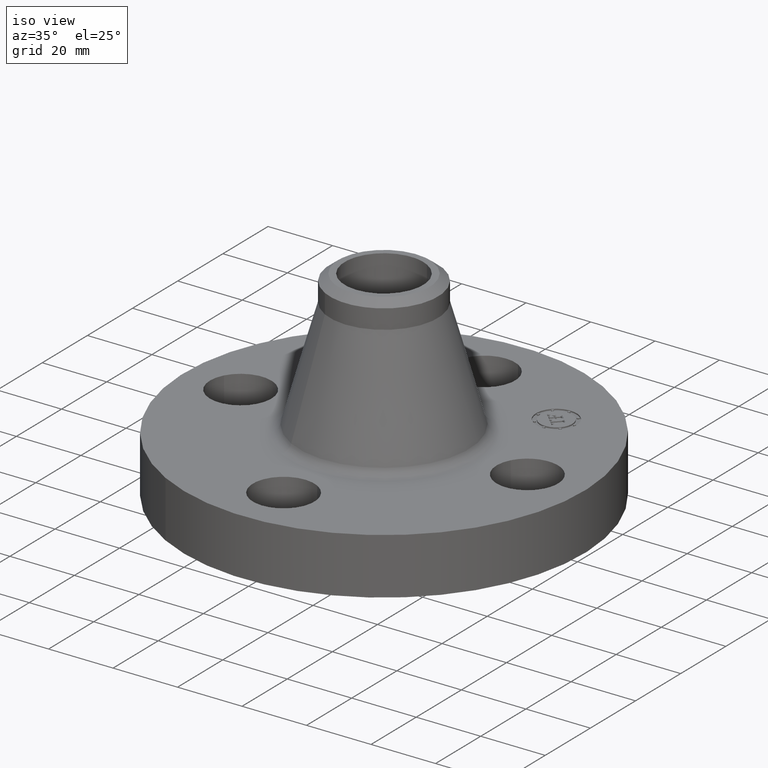
[diagram: clean part render]
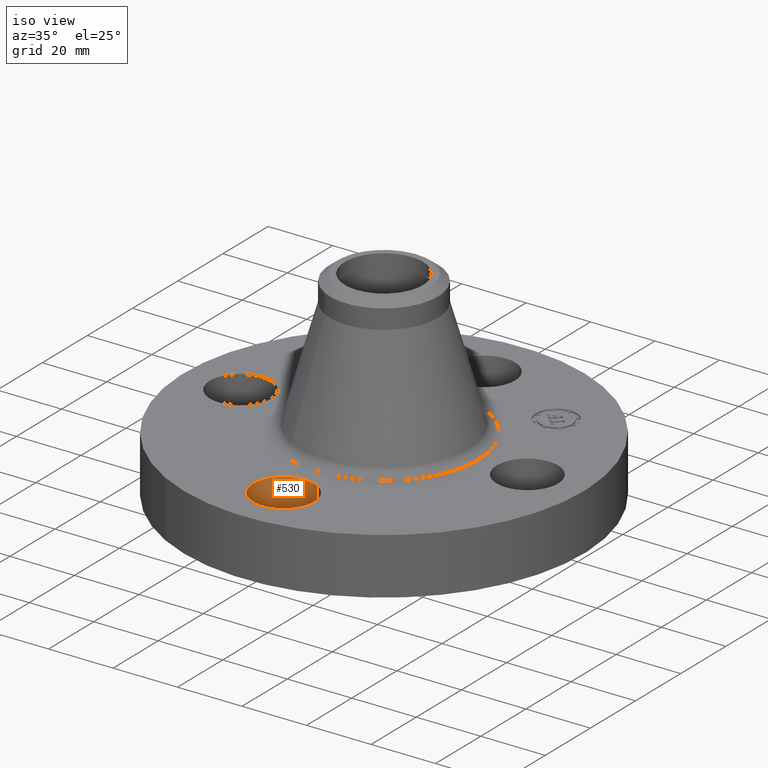
[diagram: same view with one face highlighted and labeled with its STEP entity id]
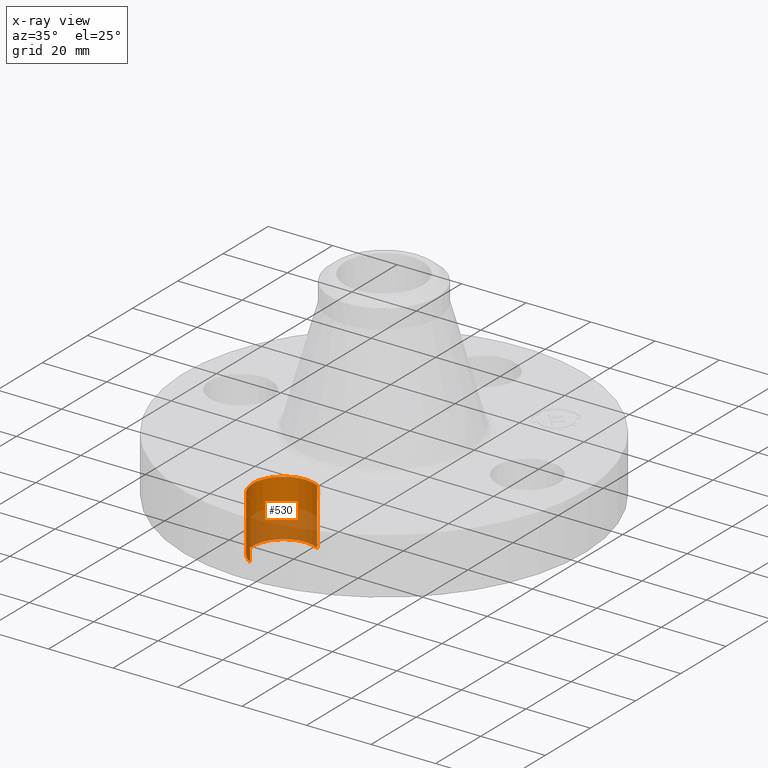
[diagram: x-ray of the same camera — body ghosted, the highlighted face saturated]
A machine part, iso view. The second image highlights one B-rep face of the part: STEP entity #530.
The next image is the same camera in x-ray: the body ghosted, the highlighted face saturated — about 47% of this face is hidden behind the body in this view.
In plain terms, the highlighted cylindrical surface (partial cylindrical patch) has radius 9.525 mm, axis along (0, -0, -1).
Its self-contained STEP definition (entity closure, byte-faithful):
#192=AXIS2_PLACEMENT_3D('Circle Axis2P3D',#190,#191,$) ;
#290=AXIS2_PLACEMENT_3D('Circle Axis2P3D',#288,#289,$) ;
#522=AXIS2_PLACEMENT_3D('Cylinder Axis2P3D',#519,#520,#521) ;
#185=CARTESIAN_POINT('Vertex',(0.179784576973,-1.42090653932,0.)) ;
#187=CARTESIAN_POINT('Vertex',(-0.179784576973,-2.07909346071,0.)) ;
#190=CARTESIAN_POINT('Axis2P3D Location',(-3.49676543189E-017,-1.75000000002,0.)) ;
#288=CARTESIAN_POINT('Axis2P3D Location',(-3.49676543189E-017,-1.75000000003,0.690000000003)) ;
#292=CARTESIAN_POINT('Vertex',(-0.179784576973,-2.07909346072,0.690000000003)) ;
#294=CARTESIAN_POINT('Vertex',(0.179784576977,-1.4209065393,0.689999999988)) ;
#495=CARTESIAN_POINT('Line Origine',(0.179784576977,-1.4209065393,0.344999999985)) ;
#500=CARTESIAN_POINT('Line Origine',(-0.179784576977,-2.07909346072,0.344999999985)) ;
#519=CARTESIAN_POINT('Axis2P3D Location',(-1.72584639625E-016,-1.75000000001,0.686062992129)) ;
#191=DIRECTION('Axis2P3D Direction',(0.,0.,-0.0393700787402)) ;
#289=DIRECTION('Axis2P3D Direction',(0.,0.,-0.0393700787402)) ;
#496=DIRECTION('Vector Direction',(0.,0.,-0.0393700787402)) ;
#501=DIRECTION('Vector Direction',(0.,0.,-0.0393700787402)) ;
#520=DIRECTION('Axis2P3D Direction',(0.,-0.,-0.0393700787402)) ;
#521=DIRECTION('Axis2P3D XDirection',(-0.0188750212049,-0.0345504945626,0.)) ;
#497=VECTOR('Line Direction',#496,0.0393700787402) ;
#502=VECTOR('Line Direction',#501,0.0393700787402) ;
#525=ORIENTED_EDGE('',*,*,#504,.F.) ;
#526=ORIENTED_EDGE('',*,*,#194,.T.) ;
#527=ORIENTED_EDGE('',*,*,#499,.T.) ;
#528=ORIENTED_EDGE('',*,*,#296,.F.) ;
#530=ADVANCED_FACE('PartBody',(#529),#523,.F.) ;
#193=CIRCLE('generated circle',#192,0.374999999988) ;
#291=CIRCLE('generated circle',#290,0.374999999988) ;
#523=CYLINDRICAL_SURFACE('generated cylinder',#522,0.375000000001) ;
#194=EDGE_CURVE('',#188,#186,#193,.T.) ;
#296=EDGE_CURVE('',#293,#295,#291,.T.) ;
#499=EDGE_CURVE('',#186,#295,#498,.F.) ;
#504=EDGE_CURVE('',#188,#293,#503,.F.) ;
#524=EDGE_LOOP('',(#525,#526,#527,#528)) ;
#529=FACE_OUTER_BOUND('',#524,.T.) ;
#498=LINE('Line',#495,#497) ;
#503=LINE('Line',#500,#502) ;
#186=VERTEX_POINT('',#185) ;
#188=VERTEX_POINT('',#187) ;
#293=VERTEX_POINT('',#292) ;
#295=VERTEX_POINT('',#294) ;